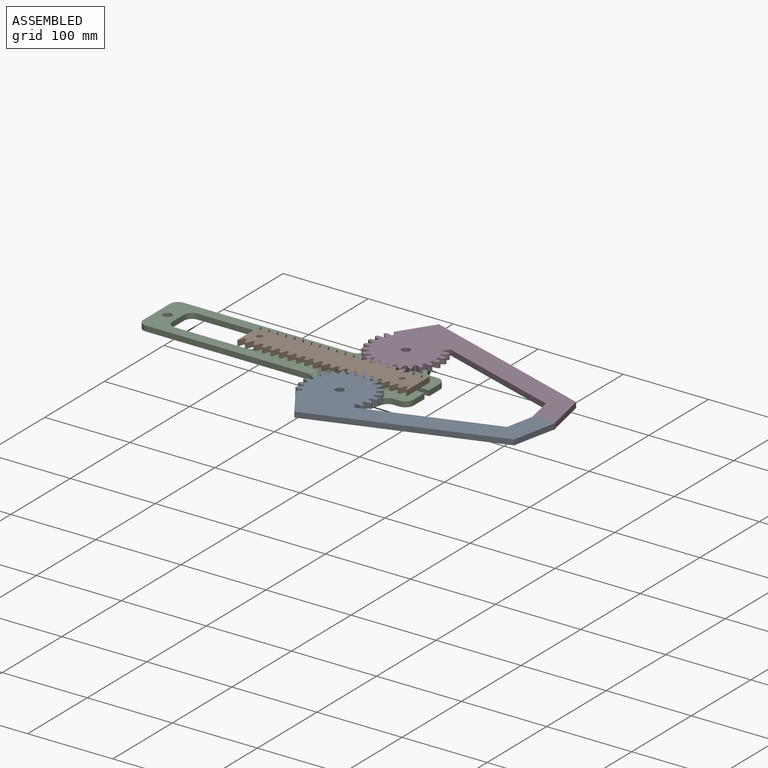
[diagram: assembled view]
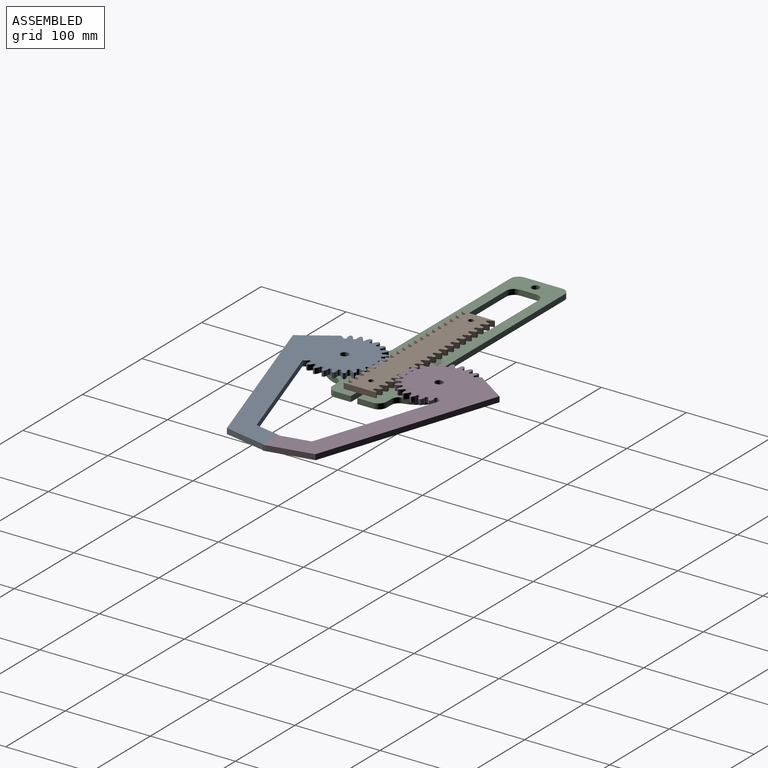
[diagram: assembled view, second angle]
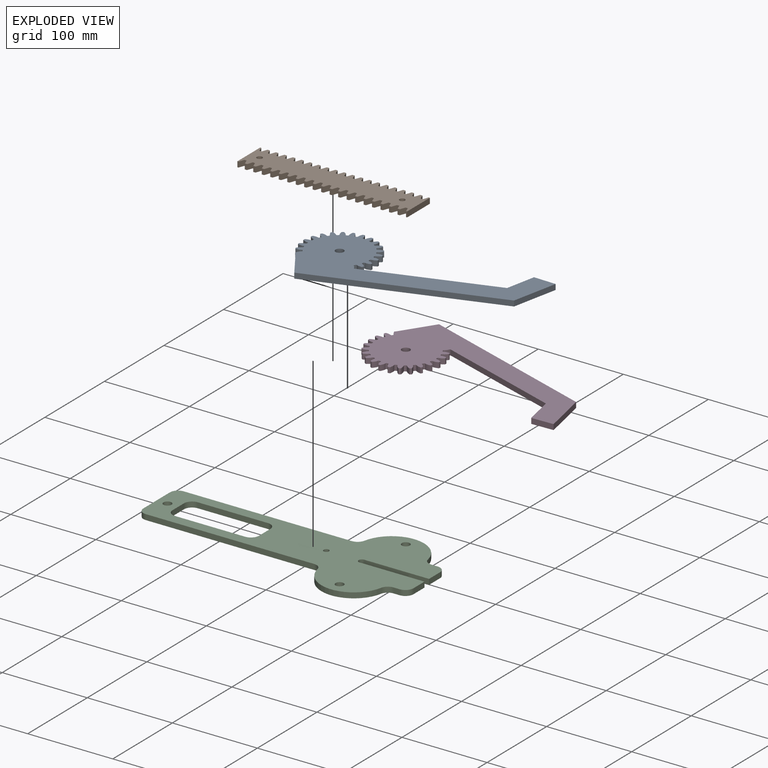
[diagram: exploded view]
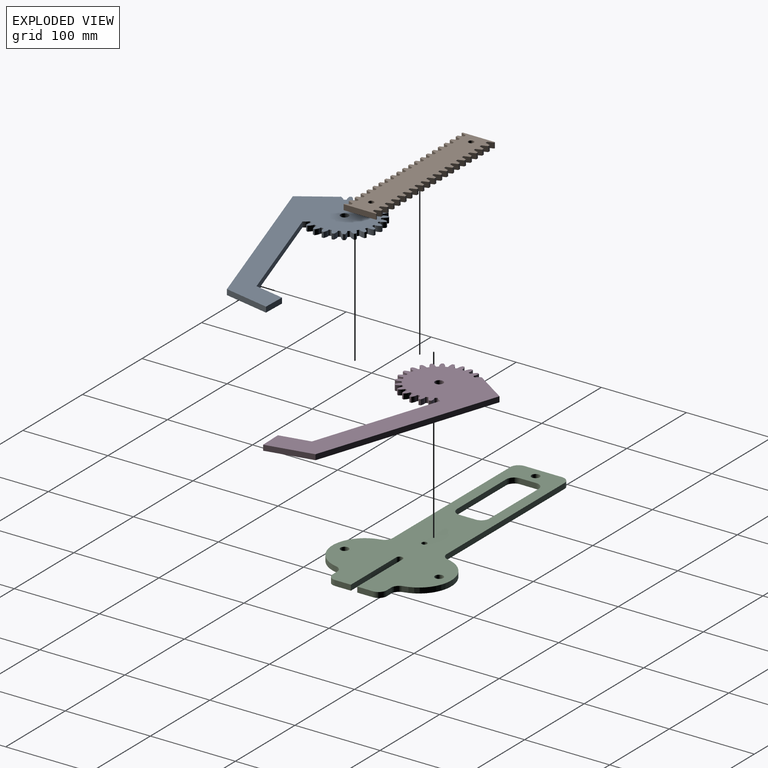
[diagram: exploded view, second angle]
ASSEMBLY  parts=4 mates=3
PART A: 117 faces, bbox 259.3x131.8x6.4 mm
  f0: cylinder r=42.86mm len=6.35mm, axis (0,0,-1), area 14.5mm2, adj f17,f19,f95,f107
  f1: cylinder r=42.86mm len=6.35mm, axis (0,0,-1), area 14.5mm2, adj f17,f19,f102,f105
  f2: cylinder r=42.86mm len=6.35mm, axis (0,0,-1), area 14.5mm2, adj f17,f19,f90,f97
  f3: cylinder r=42.86mm len=6.35mm, axis (0,0,-1), area 14.5mm2, adj f17,f19,f85,f92
  f4: cylinder r=42.86mm len=6.35mm, axis (0,0,-1), area 14.5mm2, adj f17,f19,f87,f114
  f5: cylinder r=42.86mm len=6.35mm, axis (0,0,-1), area 14.5mm2, adj f17,f19,f20,f82
  f6: cylinder r=42.86mm len=6.35mm, axis (0,0,-1), area 14.5mm2, adj f17,f19,f77,f80
  f7: cylinder r=42.86mm len=6.35mm, axis (0,0,-1), area 14.5mm2, adj f17,f19,f65,f72
  f8: cylinder r=42.86mm len=6.35mm, axis (0,0,-1), area 14.5mm2, adj f17,f19,f67,f75
  f9: cylinder r=42.86mm len=6.35mm, axis (0,0,-1), area 14.5mm2, adj f17,f19,f62,f100
  f10: cylinder r=42.86mm len=6.35mm, axis (0,0,-1), area 14.5mm2, adj f17,f19,f57,f60
  f11: cylinder r=42.86mm len=6.35mm, axis (0,0,-1), area 14.5mm2, adj f17,f19,f52,f55
  f12: cylinder r=42.86mm len=6.35mm, axis (0,0,-1), area 14.5mm2, adj f17,f19,f47,f50
  f13: cylinder r=42.86mm len=6.35mm, axis (0,0,-1), area 14.5mm2, adj f17,f19,f35,f42
  f14: cylinder r=42.86mm len=6.35mm, axis (0,0,-1), area 14.5mm2, adj f17,f19,f25,f37
  f15: cylinder r=42.86mm len=6.35mm, axis (0,0,-1), area 14.5mm2, adj f17,f19,f32,f45
  f16: cylinder r=42.86mm len=6.35mm, axis (0,0,-1), area 14.5mm2, adj f17,f19,f27,f30
  f17: plane 259.32x131.82mm, normal (0,0,1), area 11511.6mm2, adj f0,f1,f2,f3,f4,f5,f6,f7
  f18: cylinder r=42.86mm len=6.35mm, axis (0,0,-1), area 14.5mm2, adj f17,f19,f22,f40
  f19: plane 259.32x131.82mm, normal (0,0,-1), area 11511.6mm2, adj f0,f1,f2,f3,f4,f5,f6,f7
  f20: extruded ~6.35x5.8mm, area 40.5mm2, adj f5,f17,f19,f23
  f21: cylinder r=35.72mm len=6.35mm, axis (0,0,-1), area 6.9mm2, adj f17,f19,f23,f24
  f22: extruded ~6.35x5.8mm, area 40.5mm2, adj f17,f18,f19,f24
  f23: cylinder r=1.2mm len=6.35mm, axis (0,0,-1), area 11.7mm2, adj f17,f19,f20,f21
  f24: cylinder r=1.2mm len=6.35mm, axis (0,0,-1), area 11.7mm2, adj f17,f19,f21,f22
  f25: extruded ~6.35x5.92mm, area 40.5mm2, adj f14,f17,f19,f28
  f26: cylinder r=35.72mm len=6.35mm, axis (0,0,-1), area 6.9mm2, adj f17,f19,f28,f29
  f27: extruded ~6.35x5.77mm, area 40.5mm2, adj f16,f17,f19,f29
  f28: cylinder r=1.2mm len=6.35mm, axis (0,0,-1), area 11.7mm2, adj f17,f19,f25,f26
  f29: cylinder r=1.2mm len=6.35mm, axis (0,0,-1), area 11.7mm2, adj f17,f19,f26,f27
  f30: extruded ~6.35x5.19mm, area 40.5mm2, adj f16,f17,f19,f33
  f31: cylinder r=35.72mm len=6.35mm, axis (0,0,-1), area 6.9mm2, adj f17,f19,f33,f34
  f32: extruded ~6.35x6.22mm, area 40.5mm2, adj f15,f17,f19,f34
  f33: cylinder r=1.2mm len=6.35mm, axis (0,0,-1), area 11.7mm2, adj f17,f19,f30,f31
  f34: cylinder r=1.2mm len=6.35mm, axis (0,0,-1), area 11.7mm2, adj f17,f19,f31,f32
  f35: extruded ~6.35x6.27mm, area 40.5mm2, adj f13,f17,f19,f38
  f36: cylinder r=35.72mm len=6.35mm, axis (0,0,-1), area 6.9mm2, adj f17,f19,f38,f39
  f37: extruded ~6.35x4.96mm, area 40.5mm2, adj f14,f17,f19,f39
  f38: cylinder r=1.2mm len=6.35mm, axis (0,0,-1), area 11.7mm2, adj f17,f19,f35,f36
  f39: cylinder r=1.2mm len=6.35mm, axis (0,0,-1), area 11.7mm2, adj f17,f19,f36,f37
  f40: extruded ~6.35x6.23mm, area 40.5mm2, adj f17,f18,f19,f43
  f41: cylinder r=35.72mm len=6.35mm, axis (0,0,-1), area 6.9mm2, adj f17,f19,f43,f44
  f42: extruded ~6.35x5mm, area 40.5mm2, adj f13,f17,f19,f44
  f43: cylinder r=1.2mm len=6.35mm, axis (0,0,-1), area 11.7mm2, adj f17,f19,f40,f41
  f44: cylinder r=1.2mm len=6.35mm, axis (0,0,-1), area 11.7mm2, adj f17,f19,f41,f42
  f45: extruded ~6.35x4.75mm, area 40.5mm2, adj f15,f17,f19,f48
  f46: cylinder r=35.72mm len=6.35mm, axis (0,0,-1), area 6.9mm2, adj f17,f19,f48,f49
  f47: extruded ~6.35x6.28mm, area 40.5mm2, adj f12,f17,f19,f49
  f48: cylinder r=1.2mm len=6.35mm, axis (0,0,-1), area 11.7mm2, adj f17,f19,f45,f46
  f49: cylinder r=1.2mm len=6.35mm, axis (0,0,-1), area 11.7mm2, adj f17,f19,f46,f47
  f50: extruded ~6.35x5.63mm, area 40.5mm2, adj f12,f17,f19,f53
  f51: cylinder r=35.72mm len=6.35mm, axis (0,0,-1), area 6.9mm2, adj f17,f19,f53,f54
  f52: extruded ~6.35x5.94mm, area 40.5mm2, adj f11,f17,f19,f54
  f53: cylinder r=1.2mm len=6.35mm, axis (0,0,-1), area 11.7mm2, adj f17,f19,f50,f51
  f54: cylinder r=1.2mm len=6.35mm, axis (0,0,-1), area 11.7mm2, adj f17,f19,f51,f52
  f55: extruded ~6.35x6.16mm, area 40.5mm2, adj f11,f17,f19,f58
  f56: cylinder r=35.72mm len=6.35mm, axis (0,0,-1), area 6.9mm2, adj f17,f19,f58,f59
  f57: extruded ~6.35x5.23mm, area 40.5mm2, adj f10,f17,f19,f59
  f58: cylinder r=1.2mm len=6.35mm, axis (0,0,-1), area 11.7mm2, adj f17,f19,f55,f56
  f59: cylinder r=1.2mm len=6.35mm, axis (0,0,-1), area 11.7mm2, adj f17,f19,f56,f57
  f60: extruded ~6.35x6.3mm, area 40.5mm2, adj f10,f17,f19,f63
  f61: cylinder r=35.72mm len=6.35mm, axis (0,0,-1), area 6.9mm2, adj f17,f19,f63,f64
  f62: extruded ~6.35x4.71mm, area 40.5mm2, adj f9,f17,f19,f64
  f63: cylinder r=1.2mm len=6.35mm, axis (0,0,-1), area 11.7mm2, adj f17,f19,f60,f61
  f64: cylinder r=1.2mm len=6.35mm, axis (0,0,-1), area 11.7mm2, adj f17,f19,f61,f62
  f65: extruded ~6.35x5.77mm, area 40.5mm2, adj f7,f17,f19,f68
  f66: cylinder r=35.72mm len=6.35mm, axis (0,0,-1), area 6.9mm2, adj f17,f19,f68,f69
  f67: extruded ~6.35x5.92mm, area 40.5mm2, adj f8,f17,f19,f69
  f68: cylinder r=1.2mm len=6.35mm, axis (0,0,-1), area 11.7mm2, adj f17,f19,f65,f66
  f69: cylinder r=1.2mm len=6.35mm, axis (0,0,-1), area 11.7mm2, adj f17,f19,f66,f67
  f70: extruded ~6.35x6.22mm, area 40.5mm2, adj f17,f19,f73,f111
  f71: cylinder r=35.72mm len=6.35mm, axis (0,0,-1), area 6.9mm2, adj f17,f19,f73,f74
  f72: extruded ~6.35x5.19mm, area 40.5mm2, adj f7,f17,f19,f74
  f73: cylinder r=1.2mm len=6.35mm, axis (0,0,-1), area 11.7mm2, adj f17,f19,f70,f71
  f74: cylinder r=1.2mm len=6.35mm, axis (0,0,-1), area 11.7mm2, adj f17,f19,f71,f72
  f75: extruded ~6.35x4.96mm, area 40.5mm2, adj f8,f17,f19,f78
  f76: cylinder r=35.72mm len=6.35mm, axis (0,0,-1), area 6.9mm2, adj f17,f19,f78,f79
  f77: extruded ~6.35x6.27mm, area 40.5mm2, adj f6,f17,f19,f79
  f78: cylinder r=1.2mm len=6.35mm, axis (0,0,-1), area 11.7mm2, adj f17,f19,f75,f76
  f79: cylinder r=1.2mm len=6.35mm, axis (0,0,-1), area 11.7mm2, adj f17,f19,f76,f77
  f80: extruded ~6.35x5mm, area 40.5mm2, adj f6,f17,f19,f83
  f81: cylinder r=35.72mm len=6.35mm, axis (0,0,-1), area 6.9mm2, adj f17,f19,f83,f84
  f82: extruded ~6.35x6.23mm, area 40.5mm2, adj f5,f17,f19,f84
  f83: cylinder r=1.2mm len=6.35mm, axis (0,0,-1), area 11.7mm2, adj f17,f19,f80,f81
  f84: cylinder r=1.2mm len=6.35mm, axis (0,0,-1), area 11.7mm2, adj f17,f19,f81,f82
  f85: extruded ~6.35x6.06mm, area 40.5mm2, adj f3,f17,f19,f88
  f86: cylinder r=35.72mm len=6.35mm, axis (0,0,-1), area 6.9mm2, adj f17,f19,f88,f89
  f87: extruded ~6.35x5.44mm, area 40.5mm2, adj f4,f17,f19,f89
  f88: cylinder r=1.2mm len=6.35mm, axis (0,0,-1), area 11.7mm2, adj f17,f19,f85,f86
  f89: cylinder r=1.2mm len=6.35mm, axis (0,0,-1), area 11.7mm2, adj f17,f19,f86,f87
  f90: extruded ~6.35x5.44mm, area 40.5mm2, adj f2,f17,f19,f93
  f91: cylinder r=35.72mm len=6.35mm, axis (0,0,-1), area 6.9mm2, adj f17,f19,f93,f94
  f92: extruded ~6.35x6.06mm, area 40.5mm2, adj f3,f17,f19,f94
  f93: cylinder r=1.2mm len=6.35mm, axis (0,0,-1), area 11.7mm2, adj f17,f19,f90,f91
  f94: cylinder r=1.2mm len=6.35mm, axis (0,0,-1), area 11.7mm2, adj f17,f19,f91,f92
  f95: extruded ~6.35x4.48mm, area 40.5mm2, adj f0,f17,f19,f98
  f96: cylinder r=35.72mm len=6.35mm, axis (0,0,-1), area 6.9mm2, adj f17,f19,f98,f99
  f97: extruded ~6.35x6.3mm, area 40.5mm2, adj f2,f17,f19,f99
  f98: cylinder r=1.2mm len=6.35mm, axis (0,0,-1), area 11.7mm2, adj f17,f19,f95,f96
  f99: cylinder r=1.2mm len=6.35mm, axis (0,0,-1), area 11.7mm2, adj f17,f19,f96,f97
  f100: extruded ~6.35x6.04mm, area 40.5mm2, adj f9,f17,f19,f103
  f101: cylinder r=35.72mm len=6.35mm, axis (0,0,-1), area 6.9mm2, adj f17,f19,f103,f104
  f102: extruded ~6.35x5.6mm, area 40.5mm2, adj f1,f17,f19,f104
  f103: cylinder r=1.2mm len=6.35mm, axis (0,0,-1), area 11.7mm2, adj f17,f19,f100,f101
  f104: cylinder r=1.2mm len=6.35mm, axis (0,0,-1), area 11.7mm2, adj f17,f19,f101,f102
  f105: extruded ~6.35x5.41mm, area 40.5mm2, adj f1,f17,f19,f108
  f106: cylinder r=35.72mm len=6.35mm, axis (0,0,-1), area 6.9mm2, adj f17,f19,f108,f109
  f107: extruded ~6.35x6.14mm, area 40.5mm2, adj f0,f17,f19,f109
  f108: cylinder r=1.2mm len=6.35mm, axis (0,0,-1), area 11.7mm2, adj f17,f19,f105,f106
  f109: cylinder r=1.2mm len=6.35mm, axis (0,0,-1), area 11.7mm2, adj f17,f19,f106,f107
  f110: cylinder r=4.76mm len=9.53mm, axis (0,0,-1), area 190mm2, adj f17,f19
  f111: plane 152.19x23.36mm, normal (0.15,-0.99,0), area 977.7mm2, adj f17,f19,f70,f112
  f112: plane 27.89x22.37mm, normal (-0.78,-0.63,0), area 227.1mm2, adj f17,f19,f111,f113
  f113: plane 22.62x12.4mm, normal (0.48,-0.88,0), area 163.8mm2, adj f17,f19,f112,f115
  f114: plane 43.68x6.35mm, normal (-0.99,0.11,0), area 279.1mm2, adj f4,f17,f19,f116
  f115: plane 42.83x34.35mm, normal (0.78,0.63,0), area 348.6mm2, adj f17,f19,f113,f116
  f116: plane 218.45x33.54mm, normal (-0.15,0.99,0), area 1403.4mm2, adj f17,f19,f114,f115
PART B: 168 faces, bbox 199.5x38.1x6.4 mm
  f0: plane 6.35x2.68mm, normal (0,1,0), area 17mm2, adj f1,f4,f5,f6
  f1: plane 6.35x6.35mm, normal (0.94,0.34,0), area 42.9mm2, adj f0,f2,f4,f5
  f2: plane 6.35x1.34mm, normal (0,1,0), area 8.5mm2, adj f1,f3,f4,f5
  f3: plane 38.1x6.35mm, normal (-1,0,0), area 241.9mm2, adj f2,f4,f5,f87
  f4: plane 199.49x38.1mm, normal (0,0,1), area 6270.5mm2, adj f0,f1,f2,f3,f6,f7,f8,f9
  f5: plane 199.49x38.1mm, normal (0,0,-1), area 6270.5mm2, adj f0,f1,f2,f3,f6,f7,f8,f9
  f6: plane 6.35x6.35mm, normal (-0.94,0.34,0), area 42.9mm2, adj f0,f4,f5,f7
  f7: plane 6.35x2.68mm, normal (0,1,0), area 17mm2, adj f4,f5,f6,f9
  f8: plane 6.35x2.68mm, normal (0,1,0), area 17mm2, adj f4,f5,f9,f10
  f9: plane 6.35x6.35mm, normal (0.94,0.34,0), area 42.9mm2, adj f4,f5,f7,f8
  f10: plane 6.35x6.35mm, normal (-0.94,0.34,0), area 42.9mm2, adj f4,f5,f8,f11
  f11: plane 6.35x2.68mm, normal (0,1,0), area 17mm2, adj f4,f5,f10,f13
  f12: plane 6.35x2.68mm, normal (0,1,0), area 17mm2, adj f4,f5,f13,f14
  f13: plane 6.35x6.35mm, normal (0.94,0.34,0), area 42.9mm2, adj f4,f5,f11,f12
  f14: plane 6.35x6.35mm, normal (-0.94,0.34,0), area 42.9mm2, adj f4,f5,f12,f15
  f15: plane 6.35x2.68mm, normal (0,1,0), area 17mm2, adj f4,f5,f14,f17
  f16: plane 6.35x2.68mm, normal (0,1,0), area 17mm2, adj f4,f5,f17,f18
  f17: plane 6.35x6.35mm, normal (0.94,0.34,0), area 42.9mm2, adj f4,f5,f15,f16
  f18: plane 6.35x6.35mm, normal (-0.94,0.34,0), area 42.9mm2, adj f4,f5,f16,f19
  f19: plane 6.35x2.68mm, normal (0,1,0), area 17mm2, adj f4,f5,f18,f21
  f20: plane 6.35x2.68mm, normal (0,1,0), area 17mm2, adj f4,f5,f21,f22
  f21: plane 6.35x6.35mm, normal (0.94,0.34,0), area 42.9mm2, adj f4,f5,f19,f20
  f22: plane 6.35x6.35mm, normal (-0.94,0.34,0), area 42.9mm2, adj f4,f5,f20,f23
  f23: plane 6.35x2.68mm, normal (0,1,0), area 17mm2, adj f4,f5,f22,f25
  f24: plane 6.35x2.68mm, normal (0,1,0), area 17mm2, adj f4,f5,f25,f26
  f25: plane 6.35x6.35mm, normal (0.94,0.34,0), area 42.9mm2, adj f4,f5,f23,f24
  f26: plane 6.35x6.35mm, normal (-0.94,0.34,0), area 42.9mm2, adj f4,f5,f24,f27
  f27: plane 6.35x2.68mm, normal (0,1,0), area 17mm2, adj f4,f5,f26,f29
  f28: plane 6.35x2.68mm, normal (0,1,0), area 17mm2, adj f4,f5,f29,f30
  f29: plane 6.35x6.35mm, normal (0.94,0.34,0), area 42.9mm2, adj f4,f5,f27,f28
  f30: plane 6.35x6.35mm, normal (-0.94,0.34,0), area 42.9mm2, adj f4,f5,f28,f31
  f31: plane 6.35x2.68mm, normal (0,1,0), area 17mm2, adj f4,f5,f30,f33
  f32: plane 6.35x2.68mm, normal (0,1,0), area 17mm2, adj f4,f5,f33,f34
  f33: plane 6.35x6.35mm, normal (0.94,0.34,0), area 42.9mm2, adj f4,f5,f31,f32
  f34: plane 6.35x6.35mm, normal (-0.94,0.34,0), area 42.9mm2, adj f4,f5,f32,f35
  f35: plane 6.35x2.68mm, normal (0,1,0), area 17mm2, adj f4,f5,f34,f37
  f36: plane 6.35x2.68mm, normal (0,1,0), area 17mm2, adj f4,f5,f37,f38
  f37: plane 6.35x6.35mm, normal (0.94,0.34,0), area 42.9mm2, adj f4,f5,f35,f36
  f38: plane 6.35x6.35mm, normal (-0.94,0.34,0), area 42.9mm2, adj f4,f5,f36,f39
  f39: plane 6.35x2.68mm, normal (0,1,0), area 17mm2, adj f4,f5,f38,f41
  f40: plane 6.35x2.68mm, normal (0,1,0), area 17mm2, adj f4,f5,f41,f42
  f41: plane 6.35x6.35mm, normal (0.94,0.34,0), area 42.9mm2, adj f4,f5,f39,f40
  f42: plane 6.35x6.35mm, normal (-0.94,0.34,0), area 42.9mm2, adj f4,f5,f40,f43
  f43: plane 6.35x2.68mm, normal (0,1,0), area 17mm2, adj f4,f5,f42,f45
  f44: plane 6.35x2.68mm, normal (0,1,0), area 17mm2, adj f4,f5,f45,f46
  f45: plane 6.35x6.35mm, normal (0.94,0.34,0), area 42.9mm2, adj f4,f5,f43,f44
  f46: plane 6.35x6.35mm, normal (-0.94,0.34,0), area 42.9mm2, adj f4,f5,f44,f47
  f47: plane 6.35x2.68mm, normal (0,1,0), area 17mm2, adj f4,f5,f46,f49
  f48: plane 6.35x2.68mm, normal (0,1,0), area 17mm2, adj f4,f5,f49,f50
  f49: plane 6.35x6.35mm, normal (0.94,0.34,0), area 42.9mm2, adj f4,f5,f47,f48
  f50: plane 6.35x6.35mm, normal (-0.94,0.34,0), area 42.9mm2, adj f4,f5,f48,f51
  f51: plane 6.35x2.68mm, normal (0,1,0), area 17mm2, adj f4,f5,f50,f53
  f52: plane 6.35x2.68mm, normal (0,1,0), area 17mm2, adj f4,f5,f53,f54
  f53: plane 6.35x6.35mm, normal (0.94,0.34,0), area 42.9mm2, adj f4,f5,f51,f52
  f54: plane 6.35x6.35mm, normal (-0.94,0.34,0), area 42.9mm2, adj f4,f5,f52,f55
  f55: plane 6.35x2.68mm, normal (0,1,0), area 17mm2, adj f4,f5,f54,f57
  f56: plane 6.35x2.68mm, normal (0,1,0), area 17mm2, adj f4,f5,f57,f58
  f57: plane 6.35x6.35mm, normal (0.94,0.34,0), area 42.9mm2, adj f4,f5,f55,f56
  f58: plane 6.35x6.35mm, normal (-0.94,0.34,0), area 42.9mm2, adj f4,f5,f56,f59
  f59: plane 6.35x2.68mm, normal (0,1,0), area 17mm2, adj f4,f5,f58,f61
  f60: plane 6.35x2.68mm, normal (0,1,0), area 17mm2, adj f4,f5,f61,f62
  f61: plane 6.35x6.35mm, normal (0.94,0.34,0), area 42.9mm2, adj f4,f5,f59,f60
  f62: plane 6.35x6.35mm, normal (-0.94,0.34,0), area 42.9mm2, adj f4,f5,f60,f63
  f63: plane 6.35x2.68mm, normal (0,1,0), area 17mm2, adj f4,f5,f62,f65
  f64: plane 6.35x2.68mm, normal (0,1,0), area 17mm2, adj f4,f5,f65,f66
  f65: plane 6.35x6.35mm, normal (0.94,0.34,0), area 42.9mm2, adj f4,f5,f63,f64
  f66: plane 6.35x6.35mm, normal (-0.94,0.34,0), area 42.9mm2, adj f4,f5,f64,f67
  f67: plane 6.35x2.68mm, normal (0,1,0), area 17mm2, adj f4,f5,f66,f69
  f68: plane 6.35x2.68mm, normal (0,1,0), area 17mm2, adj f4,f5,f69,f70
  f69: plane 6.35x6.35mm, normal (0.94,0.34,0), area 42.9mm2, adj f4,f5,f67,f68
  f70: plane 6.35x6.35mm, normal (-0.94,0.34,0), area 42.9mm2, adj f4,f5,f68,f71
  f71: plane 6.35x2.68mm, normal (0,1,0), area 17mm2, adj f4,f5,f70,f73
  f72: plane 6.35x2.68mm, normal (0,1,0), area 17mm2, adj f4,f5,f73,f74
  f73: plane 6.35x6.35mm, normal (0.94,0.34,0), area 42.9mm2, adj f4,f5,f71,f72
  f74: plane 6.35x6.35mm, normal (-0.94,0.34,0), area 42.9mm2, adj f4,f5,f72,f75
  f75: plane 6.35x2.68mm, normal (0,1,0), area 17mm2, adj f4,f5,f74,f77
  f76: plane 6.35x2.68mm, normal (0,1,0), area 17mm2, adj f4,f5,f77,f78
  f77: plane 6.35x6.35mm, normal (0.94,0.34,0), area 42.9mm2, adj f4,f5,f75,f76
  f78: plane 6.35x6.35mm, normal (-0.94,0.34,0), area 42.9mm2, adj f4,f5,f76,f79
  f79: plane 6.35x2.68mm, normal (0,1,0), area 17mm2, adj f4,f5,f78,f81
  f80: plane 6.35x2.68mm, normal (0,1,0), area 17mm2, adj f4,f5,f81,f82
  f81: plane 6.35x6.35mm, normal (0.94,0.34,0), area 42.9mm2, adj f4,f5,f79,f80
  f82: plane 6.35x6.35mm, normal (-0.94,0.34,0), area 42.9mm2, adj f4,f5,f80,f83
  f83: plane 6.35x1.34mm, normal (0,1,0), area 8.5mm2, adj f4,f5,f82,f84
  f84: plane 38.1x6.35mm, normal (1,0,0), area 241.9mm2, adj f4,f5,f83,f165
  f85: plane 6.35x2.68mm, normal (0,-1,0), area 17mm2, adj f4,f5,f86,f88
  f86: plane 6.35x6.35mm, normal (0.94,-0.34,0), area 42.9mm2, adj f4,f5,f85,f87
  f87: plane 6.35x1.34mm, normal (0,-1,0), area 8.5mm2, adj f3,f4,f5,f86
  f88: plane 6.35x6.35mm, normal (-0.94,-0.34,0), area 42.9mm2, adj f4,f5,f85,f89
  f89: plane 6.35x2.68mm, normal (0,-1,0), area 17mm2, adj f4,f5,f88,f91
  f90: plane 6.35x2.68mm, normal (0,-1,0), area 17mm2, adj f4,f5,f91,f92
  f91: plane 6.35x6.35mm, normal (0.94,-0.34,0), area 42.9mm2, adj f4,f5,f89,f90
  f92: plane 6.35x6.35mm, normal (-0.94,-0.34,0), area 42.9mm2, adj f4,f5,f90,f93
  f93: plane 6.35x2.68mm, normal (0,-1,0), area 17mm2, adj f4,f5,f92,f95
  f94: plane 6.35x2.68mm, normal (0,-1,0), area 17mm2, adj f4,f5,f95,f96
  f95: plane 6.35x6.35mm, normal (0.94,-0.34,0), area 42.9mm2, adj f4,f5,f93,f94
  f96: plane 6.35x6.35mm, normal (-0.94,-0.34,0), area 42.9mm2, adj f4,f5,f94,f97
  f97: plane 6.35x2.68mm, normal (0,-1,0), area 17mm2, adj f4,f5,f96,f99
  f98: plane 6.35x2.68mm, normal (0,-1,0), area 17mm2, adj f4,f5,f99,f100
  f99: plane 6.35x6.35mm, normal (0.94,-0.34,0), area 42.9mm2, adj f4,f5,f97,f98
  f100: plane 6.35x6.35mm, normal (-0.94,-0.34,0), area 42.9mm2, adj f4,f5,f98,f101
  f101: plane 6.35x2.68mm, normal (0,-1,0), area 17mm2, adj f4,f5,f100,f103
  f102: plane 6.35x2.68mm, normal (0,-1,0), area 17mm2, adj f4,f5,f103,f104
  f103: plane 6.35x6.35mm, normal (0.94,-0.34,0), area 42.9mm2, adj f4,f5,f101,f102
  f104: plane 6.35x6.35mm, normal (-0.94,-0.34,0), area 42.9mm2, adj f4,f5,f102,f105
  f105: plane 6.35x2.68mm, normal (0,-1,0), area 17mm2, adj f4,f5,f104,f107
  f106: plane 6.35x2.68mm, normal (0,-1,0), area 17mm2, adj f4,f5,f107,f108
  f107: plane 6.35x6.35mm, normal (0.94,-0.34,0), area 42.9mm2, adj f4,f5,f105,f106
  f108: plane 6.35x6.35mm, normal (-0.94,-0.34,0), area 42.9mm2, adj f4,f5,f106,f109
  f109: plane 6.35x2.68mm, normal (0,-1,0), area 17mm2, adj f4,f5,f108,f111
  f110: plane 6.35x2.68mm, normal (0,-1,0), area 17mm2, adj f4,f5,f111,f112
  f111: plane 6.35x6.35mm, normal (0.94,-0.34,0), area 42.9mm2, adj f4,f5,f109,f110
  f112: plane 6.35x6.35mm, normal (-0.94,-0.34,0), area 42.9mm2, adj f4,f5,f110,f113
  f113: plane 6.35x2.68mm, normal (0,-1,0), area 17mm2, adj f4,f5,f112,f115
  f114: plane 6.35x2.68mm, normal (0,-1,0), area 17mm2, adj f4,f5,f115,f116
  f115: plane 6.35x6.35mm, normal (0.94,-0.34,0), area 42.9mm2, adj f4,f5,f113,f114
  f116: plane 6.35x6.35mm, normal (-0.94,-0.34,0), area 42.9mm2, adj f4,f5,f114,f117
  f117: plane 6.35x2.68mm, normal (0,-1,0), area 17mm2, adj f4,f5,f116,f119
  f118: plane 6.35x2.68mm, normal (0,-1,0), area 17mm2, adj f4,f5,f119,f120
  f119: plane 6.35x6.35mm, normal (0.94,-0.34,0), area 42.9mm2, adj f4,f5,f117,f118
  f120: plane 6.35x6.35mm, normal (-0.94,-0.34,0), area 42.9mm2, adj f4,f5,f118,f121
  f121: plane 6.35x2.68mm, normal (0,-1,0), area 17mm2, adj f4,f5,f120,f123
  f122: plane 6.35x2.68mm, normal (0,-1,0), area 17mm2, adj f4,f5,f123,f124
  f123: plane 6.35x6.35mm, normal (0.94,-0.34,0), area 42.9mm2, adj f4,f5,f121,f122
  f124: plane 6.35x6.35mm, normal (-0.94,-0.34,0), area 42.9mm2, adj f4,f5,f122,f125
  f125: plane 6.35x2.68mm, normal (0,-1,0), area 17mm2, adj f4,f5,f124,f127
  f126: plane 6.35x2.68mm, normal (0,-1,0), area 17mm2, adj f4,f5,f127,f128
  f127: plane 6.35x6.35mm, normal (0.94,-0.34,0), area 42.9mm2, adj f4,f5,f125,f126
  f128: plane 6.35x6.35mm, normal (-0.94,-0.34,0), area 42.9mm2, adj f4,f5,f126,f129
  f129: plane 6.35x2.68mm, normal (0,-1,0), area 17mm2, adj f4,f5,f128,f131
  f130: plane 6.35x2.68mm, normal (0,-1,0), area 17mm2, adj f4,f5,f131,f132
  f131: plane 6.35x6.35mm, normal (0.94,-0.34,0), area 42.9mm2, adj f4,f5,f129,f130
  f132: plane 6.35x6.35mm, normal (-0.94,-0.34,0), area 42.9mm2, adj f4,f5,f130,f133
  f133: plane 6.35x2.68mm, normal (0,-1,0), area 17mm2, adj f4,f5,f132,f135
  f134: plane 6.35x2.68mm, normal (0,-1,0), area 17mm2, adj f4,f5,f135,f136
  f135: plane 6.35x6.35mm, normal (0.94,-0.34,0), area 42.9mm2, adj f4,f5,f133,f134
  f136: plane 6.35x6.35mm, normal (-0.94,-0.34,0), area 42.9mm2, adj f4,f5,f134,f137
  f137: plane 6.35x2.68mm, normal (0,-1,0), area 17mm2, adj f4,f5,f136,f139
  f138: plane 6.35x2.68mm, normal (0,-1,0), area 17mm2, adj f4,f5,f139,f140
  f139: plane 6.35x6.35mm, normal (0.94,-0.34,0), area 42.9mm2, adj f4,f5,f137,f138
  f140: plane 6.35x6.35mm, normal (-0.94,-0.34,0), area 42.9mm2, adj f4,f5,f138,f141
  f141: plane 6.35x2.68mm, normal (0,-1,0), area 17mm2, adj f4,f5,f140,f143
  f142: plane 6.35x2.68mm, normal (0,-1,0), area 17mm2, adj f4,f5,f143,f144
  f143: plane 6.35x6.35mm, normal (0.94,-0.34,0), area 42.9mm2, adj f4,f5,f141,f142
  f144: plane 6.35x6.35mm, normal (-0.94,-0.34,0), area 42.9mm2, adj f4,f5,f142,f145
  f145: plane 6.35x2.68mm, normal (0,-1,0), area 17mm2, adj f4,f5,f144,f147
  f146: plane 6.35x2.68mm, normal (0,-1,0), area 17mm2, adj f4,f5,f147,f148
  f147: plane 6.35x6.35mm, normal (0.94,-0.34,0), area 42.9mm2, adj f4,f5,f145,f146
  f148: plane 6.35x6.35mm, normal (-0.94,-0.34,0), area 42.9mm2, adj f4,f5,f146,f149
  f149: plane 6.35x2.68mm, normal (0,-1,0), area 17mm2, adj f4,f5,f148,f151
  f150: plane 6.35x2.68mm, normal (0,-1,0), area 17mm2, adj f4,f5,f151,f152
  f151: plane 6.35x6.35mm, normal (0.94,-0.34,0), area 42.9mm2, adj f4,f5,f149,f150
  f152: plane 6.35x6.35mm, normal (-0.94,-0.34,0), area 42.9mm2, adj f4,f5,f150,f153
  f153: plane 6.35x2.68mm, normal (0,-1,0), area 17mm2, adj f4,f5,f152,f155
  f154: plane 6.35x2.68mm, normal (0,-1,0), area 17mm2, adj f4,f5,f155,f156
  f155: plane 6.35x6.35mm, normal (0.94,-0.34,0), area 42.9mm2, adj f4,f5,f153,f154
  f156: plane 6.35x6.35mm, normal (-0.94,-0.34,0), area 42.9mm2, adj f4,f5,f154,f157
  f157: plane 6.35x2.68mm, normal (0,-1,0), area 17mm2, adj f4,f5,f156,f159
  f158: plane 6.35x2.68mm, normal (0,-1,0), area 17mm2, adj f4,f5,f159,f160
  f159: plane 6.35x6.35mm, normal (0.94,-0.34,0), area 42.9mm2, adj f4,f5,f157,f158
  f160: plane 6.35x6.35mm, normal (-0.94,-0.34,0), area 42.9mm2, adj f4,f5,f158,f161
  f161: plane 6.35x2.68mm, normal (0,-1,0), area 17mm2, adj f4,f5,f160,f163
  f162: plane 6.35x2.68mm, normal (0,-1,0), area 17mm2, adj f4,f5,f163,f164
  f163: plane 6.35x6.35mm, normal (0.94,-0.34,0), area 42.9mm2, adj f4,f5,f161,f162
  f164: plane 6.35x6.35mm, normal (-0.94,-0.34,0), area 42.9mm2, adj f4,f5,f162,f165
  f165: plane 6.35x1.34mm, normal (0,-1,0), area 8.5mm2, adj f4,f5,f84,f164
  f166: cylinder r=3.17mm len=6.35mm, axis (0,0,1), area 126.7mm2, adj f4,f5
  f167: cylinder r=3.17mm len=6.35mm, axis (0,0,1), area 126.7mm2, adj f4,f5
PART C: 34 faces, bbox 317.5x139.7x6.4 mm
  f0: cylinder r=9.53mm len=9.53mm, axis (0,0,1), area 95mm2, adj f1,f28,f32,f33
  f1: plane 19.05x6.35mm, normal (1,0,0), area 121mm2, adj f0,f2,f32,f33
  f2: cylinder r=9.53mm len=9.53mm, axis (0,0,1), area 95mm2, adj f1,f3,f32,f33
  f3: plane 82.55x6.35mm, normal (0,1,0), area 524.2mm2, adj f2,f4,f32,f33
  f4: cylinder r=9.53mm len=9.53mm, axis (0,0,1), area 95mm2, adj f3,f5,f32,f33
  f5: plane 19.05x6.35mm, normal (-1,0,0), area 121mm2, adj f4,f6,f32,f33
  f6: cylinder r=9.53mm len=9.53mm, axis (0,0,1), area 95mm2, adj f5,f28,f32,f33
  f7: cylinder r=9.53mm len=9.53mm, axis (0,0,1), area 95mm2, adj f8,f30,f32,f33
  f8: plane 18.42x6.35mm, normal (1,0,0), area 116.9mm2, adj f7,f9,f32,f33
  f9: plane 76.2x6.35mm, normal (0,-1,0), area 483.9mm2, adj f8,f10,f32,f33
  f10: cylinder r=3.81mm len=7.62mm, axis (0,0,1), area 76mm2, adj f9,f11,f32,f33
  f11: plane 76.2x6.35mm, normal (0,1,0), area 483.9mm2, adj f10,f12,f32,f33
  f12: plane 18.42x6.35mm, normal (1,0,0), area 116.9mm2, adj f11,f13,f32,f33
  f13: cylinder r=9.53mm len=9.53mm, axis (0,0,1), area 95mm2, adj f12,f14,f32,f33
  f14: plane 7.31x6.35mm, normal (0,-1,0), area 46.4mm2, adj f13,f15,f32,f33
  f15: cylinder r=9.53mm len=9.33mm, axis (0,0,1), area 82.8mm2, adj f14,f16,f32,f33
  f16: cylinder r=38.1mm len=74.66mm, axis (0,0,1), area 662.6mm2, adj f15,f17,f32,f33
  f17: cylinder r=9.53mm len=9.33mm, axis (0,0,1), area 82.8mm2, adj f16,f18,f32,f33
  f18: plane 197.81x6.35mm, normal (0,-1,0), area 1256.1mm2, adj f17,f19,f32,f33
  f19: cylinder r=9.53mm len=9.53mm, axis (0,0,1), area 95mm2, adj f18,f20,f32,f33
  f20: plane 44.45x6.35mm, normal (-1,0,0), area 282.3mm2, adj f19,f21,f32,f33
  f21: cylinder r=9.53mm len=9.53mm, axis (0,0,1), area 95mm2, adj f20,f22,f32,f33
  f22: plane 197.81x6.35mm, normal (0,1,0), area 1256.1mm2, adj f21,f23,f32,f33
  f23: cylinder r=9.53mm len=9.33mm, axis (0,0,1), area 82.8mm2, adj f22,f24,f32,f33
  f24: cylinder r=38.1mm len=74.66mm, axis (0,0,1), area 662.6mm2, adj f23,f25,f32,f33
  f25: cylinder r=9.53mm len=9.33mm, axis (0,0,1), area 82.8mm2, adj f24,f30,f32,f33
  f26: cylinder r=4.76mm len=9.53mm, axis (0,0,1), area 190mm2, adj f32,f33
  f27: cylinder r=4.76mm len=9.53mm, axis (0,0,1), area 190mm2, adj f32,f33
  f28: plane 82.55x6.35mm, normal (0,-1,0), area 524.2mm2, adj f0,f6,f32,f33
  f29: cylinder r=3.17mm len=6.35mm, axis (0,0,1), area 126.7mm2, adj f32,f33
  f30: plane 7.31x6.35mm, normal (0,1,0), area 46.4mm2, adj f7,f25,f32,f33
  f31: cylinder r=4.76mm len=9.53mm, axis (0,0,1), area 190mm2, adj f32,f33
  f32: plane 317.5x139.7mm, normal (0,0,-1), area 20057.6mm2, adj f0,f1,f2,f3,f4,f5,f6,f7
  f33: plane 317.5x139.7mm, normal (0,0,1), area 20057.6mm2, adj f0,f1,f2,f3,f4,f5,f6,f7
PART D: same geometry as A
PLACE A rot(axis=(-0.97,-0.23,0),180deg) t=(-48.26,-41.27,10.09)mm
PLACE B t=(-110.06,0.82,3.74)mm
PLACE C t=(-31.67,0.82,3.74)mm fixed
PLACE D rot(axis=(0,0,-1),27deg) t=(-48.26,4.8,3.74)mm
MATE revolute C.f27 <-> D.f41  axis (0,0,1) through (-31.67,37.33,3.74)mm
MATE slider B.f3 <-> C.f5  axis (-1,0,0) through (-177.39,-18.23,3.74)mm
MATE revolute A.f41 <-> C.f31  axis (0,0,-1) through (-31.67,-73.8,3.74)mm
